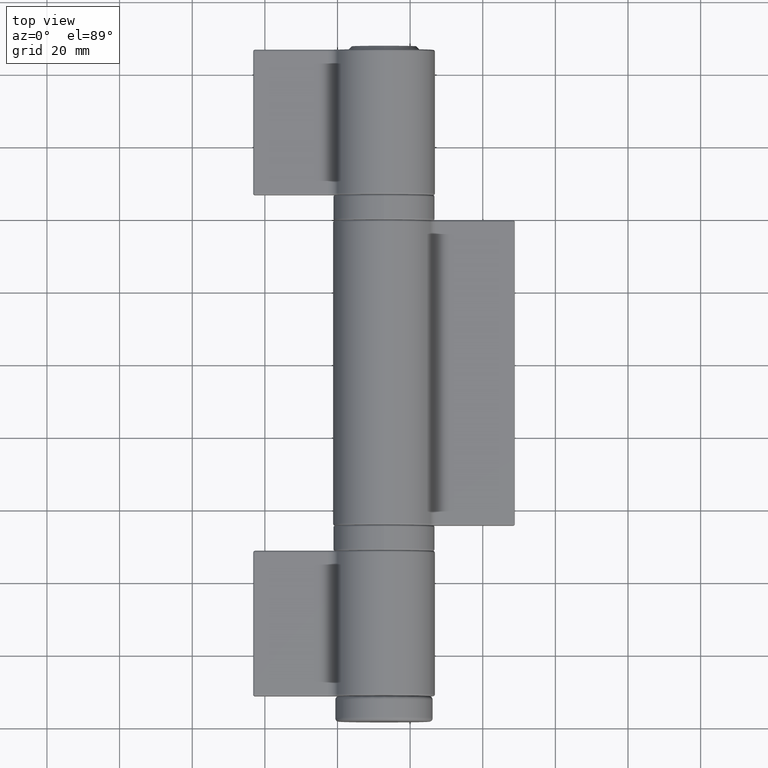
[diagram: clean part render]
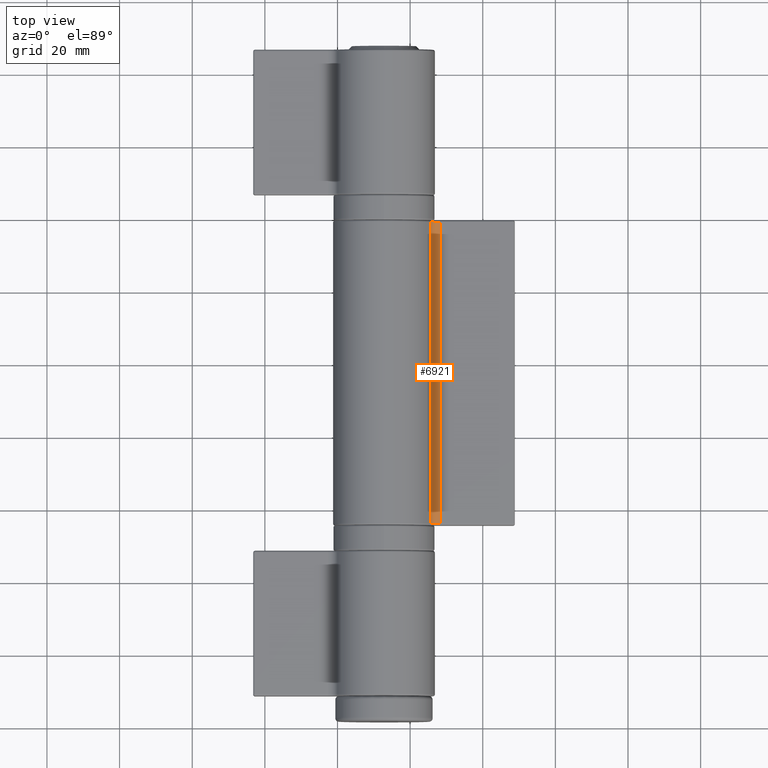
[diagram: same view with one face highlighted and labeled with its STEP entity id]
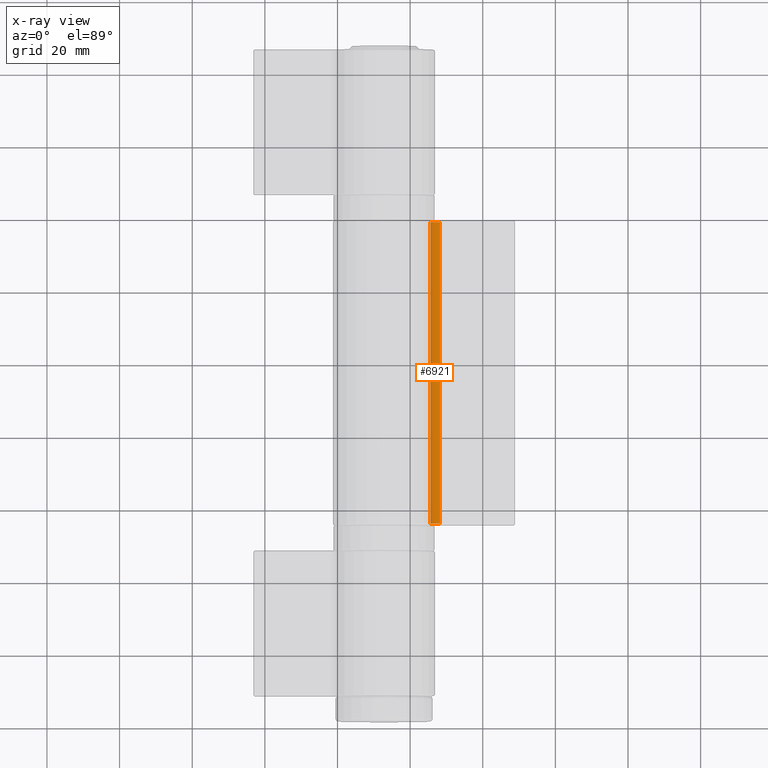
[diagram: x-ray of the same camera — body ghosted, the highlighted face saturated]
A machine part, top view. The second image highlights one B-rep face of the part: STEP entity #6921.
The next image is the same camera in x-ray: the body ghosted, the highlighted face saturated — about 0% of this face is hidden behind the body in this view.
In plain terms, the highlighted cylindrical surface (edge-blend (fillet) strip) has radius 3 mm, axis along (-0, -1, 0).
Its self-contained STEP definition (entity closure, byte-faithful):
#326 = VERTEX_POINT ( 'NONE', #1258 ) ;
#456 = CARTESIAN_POINT ( 'NONE',  ( -5.805882352941177160, -41.49999999999995737, 12.73937714740427296 ) ) ;
#507 = FACE_OUTER_BOUND ( 'NONE', #4871, .T. ) ;
#671 = CARTESIAN_POINT ( 'NONE',  ( -7.050000000000001599, 41.50000000000000000, 15.46924367899090313 ) ) ;
#1258 = CARTESIAN_POINT ( 'NONE',  ( -4.050000000000002487, -41.49999999999997158, 15.46924367899090313 ) ) ;
#1438 = ORIENTED_EDGE ( 'NONE', *, *, #8638, .T. ) ;
#2249 = CARTESIAN_POINT ( 'NONE',  ( -5.805882352941177160, 41.50000000000000000, 12.73937714740427296 ) ) ;
#2339 = CARTESIAN_POINT ( 'NONE',  ( -4.050000000000002487, 42.00000000000000000, 15.46924367899090313 ) ) ;
#2447 = AXIS2_PLACEMENT_3D ( 'NONE', #7525, #8252, #4083 ) ;
#2774 = DIRECTION ( 'NONE',  ( 0.000000000000000000, 0.000000000000000000, -1.000000000000000000 ) ) ;
#2842 = CIRCLE ( 'NONE', #2447, 2.999999999999999112 ) ;
#3160 = EDGE_CURVE ( 'NONE', #8536, #10006, #4216, .T. ) ;
#3225 = ORIENTED_EDGE ( 'NONE', *, *, #8941, .T. ) ;
#3995 = EDGE_CURVE ( 'NONE', #8536, #326, #7359, .T. ) ;
#4074 = DIRECTION ( 'NONE',  ( -0.000000000000000000, -1.000000000000000000, -0.000000000000000000 ) ) ;
#4083 = DIRECTION ( 'NONE',  ( 0.000000000000000000, 0.000000000000000000, 1.000000000000000000 ) ) ;
#4153 = DIRECTION ( 'NONE',  ( -0.000000000000000000, -1.000000000000000000, -0.000000000000000000 ) ) ;
#4216 = CIRCLE ( 'NONE', #10227, 2.999999999999999112 ) ;
#4281 = ORIENTED_EDGE ( 'NONE', *, *, #3995, .F. ) ;
#4405 = DIRECTION ( 'NONE',  ( -0.000000000000000000, -1.000000000000000000, -0.000000000000000000 ) ) ;
#4712 = VERTEX_POINT ( 'NONE', #456 ) ;
#4871 = EDGE_LOOP ( 'NONE', ( #3225, #1438, #4281, #9113 ) ) ;
#4918 = CYLINDRICAL_SURFACE ( 'NONE', #10398, 2.999999999999999112 ) ;
#6579 = DIRECTION ( 'NONE',  ( 0.000000000000000000, 0.000000000000000000, 1.000000000000000000 ) ) ;
#6921 = ADVANCED_FACE ( 'NONE', ( #507 ), #4918, .F. ) ;
#7017 = LINE ( 'NONE', #10818, #9356 ) ;
#7359 = LINE ( 'NONE', #2339, #8526 ) ;
#7525 = CARTESIAN_POINT ( 'NONE',  ( -7.050000000000001599, -41.49999999999998579, 15.46924367899090313 ) ) ;
#8188 = DIRECTION ( 'NONE',  ( 0.000000000000000000, 1.000000000000000000, -0.000000000000000000 ) ) ;
#8252 = DIRECTION ( 'NONE',  ( -0.000000000000000000, -1.000000000000000000, 0.000000000000000000 ) ) ;
#8526 = VECTOR ( 'NONE', #4074, 1000.000000000000000 ) ;
#8536 = VERTEX_POINT ( 'NONE', #8845 ) ;
#8602 = CARTESIAN_POINT ( 'NONE',  ( -7.050000000000001599, 42.00000000000000000, 15.46924367899090313 ) ) ;
#8638 = EDGE_CURVE ( 'NONE', #4712, #326, #2842, .T. ) ;
#8845 = CARTESIAN_POINT ( 'NONE',  ( -4.050000000000002487, 41.50000000000000000, 15.46924367899090313 ) ) ;
#8941 = EDGE_CURVE ( 'NONE', #10006, #4712, #7017, .T. ) ;
#9113 = ORIENTED_EDGE ( 'NONE', *, *, #3160, .T. ) ;
#9356 = VECTOR ( 'NONE', #4153, 1000.000000000000000 ) ;
#10006 = VERTEX_POINT ( 'NONE', #2249 ) ;
#10227 = AXIS2_PLACEMENT_3D ( 'NONE', #671, #8188, #6579 ) ;
#10398 = AXIS2_PLACEMENT_3D ( 'NONE', #8602, #4405, #2774 ) ;
#10818 = CARTESIAN_POINT ( 'NONE',  ( -5.805882352941177160, 42.00000000000000000, 12.73937714740427296 ) ) ;